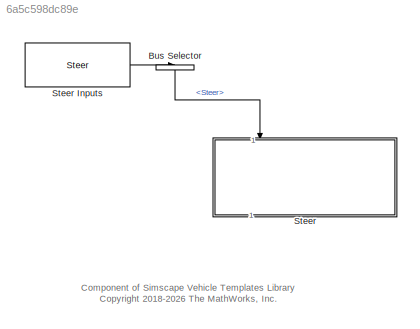
MODEL slx_6a5c598dc89e
KIND library
CONFIG SolverName = VariableStepAuto
BLOCK [BusSelector] Bus Selector
  NameLocation = left
  OutputSignals = Steer
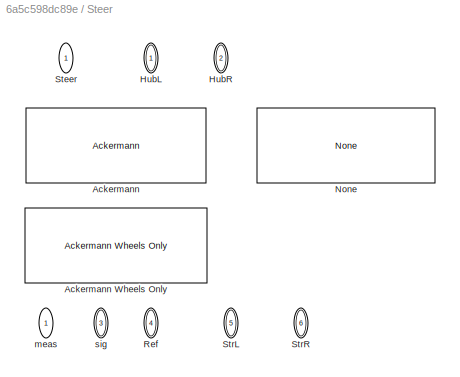
BLOCK [SubSystem] Steer
  AttributesFormatString = %<ActiveVariant>
  NameLocation = right
  Variant = on
  VariantControl = Variant1
BLOCK [Reference] Steer Inputs  REF=sm_car_lib/Control/Steer  (lib defined in slx_05426f0848b6, slx_5dc2867fb1c9)
  SourceBlock = sm_car_lib/Control/Steer
BLOCK [PMIOPort] Steer/ HubL
  NameLocation = left
  Side = Left
BLOCK [PMIOPort] Steer/ HubR
  NameLocation = left
  Port = 2
  Side = Left
BLOCK [PMIOPort] Steer/ Ref
  NameLocation = left
  Port = 4
  Side = Right
BLOCK [PMIOPort] Steer/ StrL
  NameLocation = left
  Port = 5
  Side = Right
BLOCK [PMIOPort] Steer/ StrR
  NameLocation = left
  Port = 6
  Side = Right
BLOCK [PMIOPort] Steer/ sig
  NameLocation = left
  Port = 3
  Side = Right
BLOCK [Reference] Steer/Ackermann  REF=Steer_Ackermann/Ackermann
  NameLocation = left
  SourceBlock = Steer_Ackermann/Ackermann
  SourceType = Ackerman Steering
BLOCK [Reference] Steer/Ackermann Wheels Only  REF=Steer_Ackermann_WheelsOnly/Ackermann Wheels Only
  NameLocation = left
  SourceBlock = Steer_Ackermann_WheelsOnly/Ackermann Wheels Only
  SourceType = Ackerman Steering, Wheels only
BLOCK [Reference] Steer/None  REF=Steer_Ackermann/None
  NameLocation = left
  SourceBlock = Steer_Ackermann/None
  SourceType = SubSystem
BLOCK [Inport] Steer/Steer
  NameLocation = left
BLOCK [Outport] Steer/meas
  NameLocation = left
  VectorParamsAs1DForOutWhenUnconnected = off
ANNOTATION (root): Component of Simscape Vehicle Templates Library <copyright redacted>
LINE Bus Selector:1 -> Steer:1
LINE Steer Inputs:1 -> Bus Selector:1
